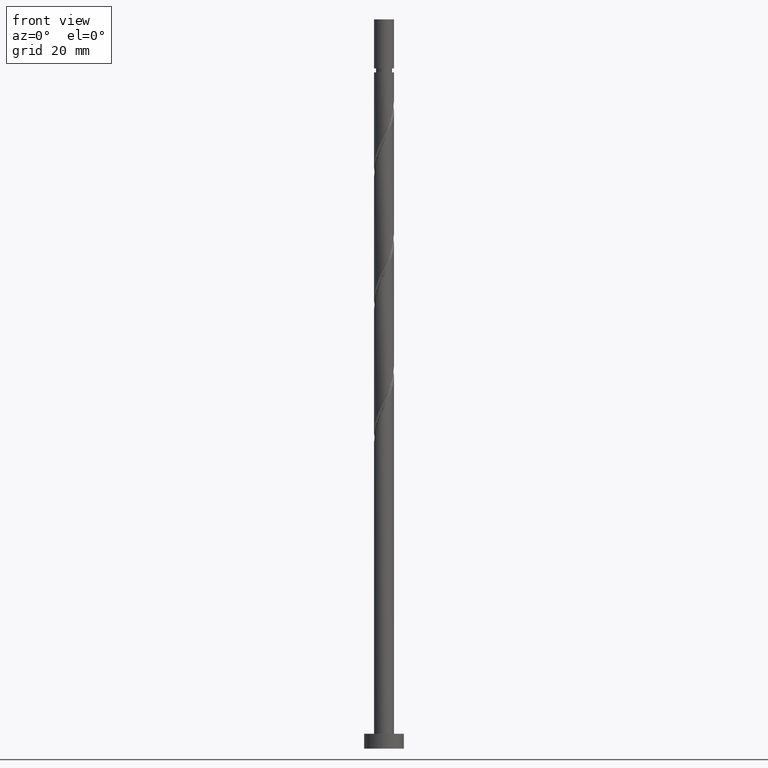
[diagram: clean part render]
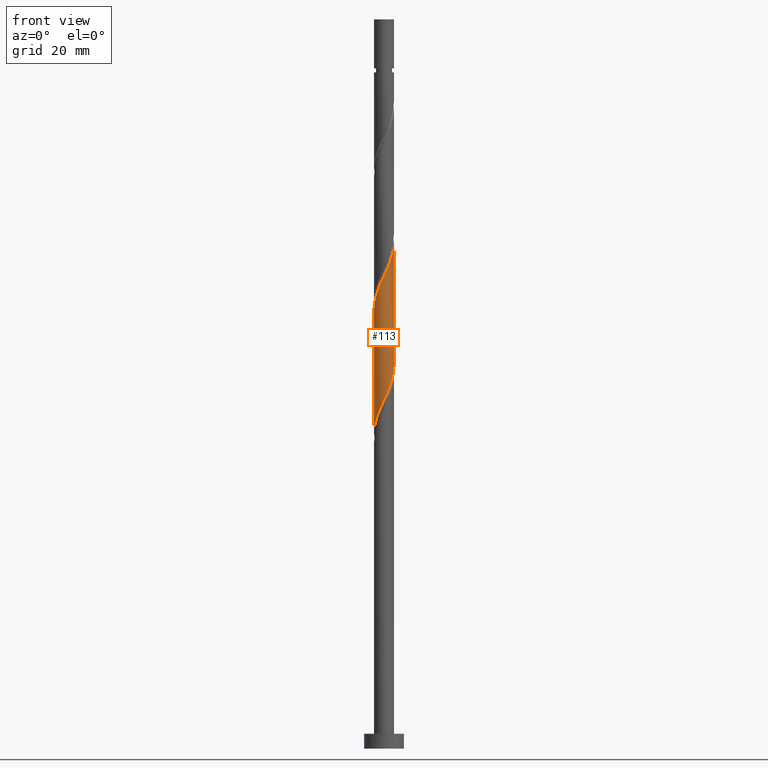
[diagram: same view with one face highlighted and labeled with its STEP entity id]
A machine part, front view. The second image highlights one B-rep face of the part: STEP entity #113.
In plain terms, the highlighted cylindrical surface (edge-blend (fillet) strip) has radius 2 mm, axis along (-0, -0, -1).
Its self-contained STEP definition (entity closure, byte-faithful):
#17 = DIRECTION ( 'NONE',  ( -1.000000000000000000, 0.000000000000000000, 0.000000000000000000 ) ) ;
#25 = CARTESIAN_POINT ( 'NONE',  ( 0.9340691933046018081, -1.768478086411958028, 97.05590359365933750 ) ) ;
#70 =( BOUNDED_CURVE ( )  B_SPLINE_CURVE ( 2, ( #1201, #809, #145, #1176, #156, #1563, #1323, #654, #179, #1419, #938, #1438, #1073, #394, #414, #665, #25, #906, #289, #797, #645, #1188, #1312, #269, #1166 ),
 .UNSPECIFIED., .F., .F. ) 
 B_SPLINE_CURVE_WITH_KNOTS ( ( 3, 2, 2, 2, 2, 2, 2, 2, 2, 2, 2, 2, 3 ),
 ( 0.3045252162417513286, 0.3068181818181817677, 0.3181818181818182323, 0.3295454545454545858, 0.3409090909090909394, 0.3522727272727272929, 0.3636363636363636465, 0.3750000000000000000, 0.3863636363636363535, 0.3977272727272727071, 0.4090909090909090606, 0.4204545454545454142, 0.4295252162417511066 ),
 .UNSPECIFIED. ) 
 CURVE ( )  GEOMETRIC_REPRESENTATION_ITEM ( )  RATIONAL_B_SPLINE_CURVE ( ( 0.9061101570135646766, 0.9072237824201467848, 0.9090909090909243817, 0.8998376744372265090, 0.9090909090909243817, 0.8998376744372265090, 0.9090909090909243817, 0.8998376744372265090, 0.9090909090909243817, 0.8998376744372265090, 0.9090909090909243817, 0.8998376744372265090, 0.9090909090909243817, 0.8998376744372265090, 0.9090909090909243817, 0.8998376744372265090, 0.9090909090909243817, 0.8998376744372265090, 0.9090909090909243817, 0.8998376744372265090, 0.9090909090909243817, 0.8998376744372265090, 0.9090909090909243817, 0.9017048011080042169, 0.9061101570135644545 ) ) 
 REPRESENTATION_ITEM ( '' )  );
#107 = LINE ( 'NONE', #480, #342 ) ;
#113 = ADVANCED_FACE ( 'NONE', ( #1546 ), #147, .T. ) ;
#142 = CARTESIAN_POINT ( 'NONE',  ( -1.883197487972271711, -0.7322950311120145495, 64.93469147244726969 ) ) ;
#145 = CARTESIAN_POINT ( 'NONE',  ( -1.996690616564942955, -0.1150068768444763440, 88.57105510881086730 ) ) ;
#147 = CYLINDRICAL_SURFACE ( 'NONE', #740, 2.000000000000000000 ) ;
#150 = CARTESIAN_POINT ( 'NONE',  ( 0.4568343776401062040, -1.968245701812301407, 70.99529753305333202 ) ) ;
#156 = CARTESIAN_POINT ( 'NONE',  ( -1.883409435608319304, -0.6728810428757545647, 89.78317632093209966 ) ) ;
#179 = CARTESIAN_POINT ( 'NONE',  ( -1.220637884402356432, -1.584311571365225602, 92.20741874517452175 ) ) ;
#214 = CARTESIAN_POINT ( 'NONE',  ( 2.000000000000003109, 8.899308318580325832E-16, 101.6609945689039449 ) ) ;
#216 = EDGE_LOOP ( 'NONE', ( #1642, #574, #482, #1129 ) ) ;
#269 = CARTESIAN_POINT ( 'NONE',  ( 2.000000000000001776, -0.2290578547702513124, 101.1750346159326170 ) ) ;
#273 = CARTESIAN_POINT ( 'NONE',  ( 1.448427499289742348, -1.408810338760219771, 73.41953995729573990 ) ) ;
#282 = EDGE_CURVE ( 'NONE', #1252, #1439, #107, .T. ) ;
#289 = CARTESIAN_POINT ( 'NONE',  ( 1.394470680848407529, -1.433684595806968387, 98.26802480578056986 ) ) ;
#324 = CARTESIAN_POINT ( 'NONE',  ( -2.000000000000003109, -9.647149353755143079E-16, 88.32766123557061633 ) ) ;
#342 = VECTOR ( 'NONE', #1135, 1000.000000000000000 ) ;
#363 =( BOUNDED_CURVE ( )  B_SPLINE_CURVE ( 2, ( #512, #1034, #1537, #528, #385, #392, #1276, #273, #896, #910, #649, #150, #1423, #1155, #790, #1549, #1410, #398, #1557, #780, #407, #142, #1431, #930, #903 ),
 .UNSPECIFIED., .F., .T. ) 
 B_SPLINE_CURVE_WITH_KNOTS ( ( 3, 2, 2, 2, 2, 2, 2, 2, 2, 2, 2, 2, 3 ),
 ( 0.8045252162417513286, 0.8068181818181817677, 0.8181818181818182323, 0.8295454545454545858, 0.8409090909090909394, 0.8522727272727272929, 0.8636363636363636465, 0.8750000000000000000, 0.8863636363636363535, 0.8977272727272727071, 0.9090909090909090606, 0.9204545454545454142, 0.9295252162417513286 ),
 .UNSPECIFIED. ) 
 CURVE ( )  GEOMETRIC_REPRESENTATION_ITEM ( )  RATIONAL_B_SPLINE_CURVE ( ( 0.9061101570135584593, 0.9072237824201405676, 0.9090909090909180534, 0.8998376744372204028, 0.9090909090909180534, 0.8998376744372204028, 0.9090909090909180534, 0.8998376744372204028, 0.9090909090909180534, 0.8998376744372204028, 0.9090909090909180534, 0.8998376744372204028, 0.9090909090909180534, 0.8998376744372204028, 0.9090909090909180534, 0.8998376744372204028, 0.9090909090909180534, 0.8998376744372204028, 0.9090909090909180534, 0.8998376744372204028, 0.9090909090909180534, 0.8998376744372204028, 0.9090909090909180534, 0.9017048011079978886, 0.9061101570135584593 ) ) 
 REPRESENTATION_ITEM ( '' )  );
#385 = CARTESIAN_POINT ( 'NONE',  ( 1.883409435608316862, -0.6728810428757546758, 75.23772177547759554 ) ) ;
#392 = CARTESIAN_POINT ( 'NONE',  ( 1.786663747202082320, -0.9436744384215535186, 74.63166116941695805 ) ) ;
#394 = CARTESIAN_POINT ( 'NONE',  ( 0.1161895186125000562, -2.017223038501451349, 95.23772177547755291 ) ) ;
#398 = CARTESIAN_POINT ( 'NONE',  ( -1.188337955536407309, -1.634179211325359038, 67.35893389668970599 ) ) ;
#407 = CARTESIAN_POINT ( 'NONE',  ( -1.741900447066338398, -0.9827425057002938669, 65.54075207850789297 ) ) ;
#414 = CARTESIAN_POINT ( 'NONE',  ( 0.3979949748426480083, -1.960000000000003073, 95.84378238153813356 ) ) ;
#415 = CARTESIAN_POINT ( 'NONE',  ( 0.000000000000000000, 0.000000000000000000, 146.5000000000000000 ) ) ;
#480 = CARTESIAN_POINT ( 'NONE',  ( -2.000000000000000000, 0.000000000000000000, 146.5000000000000000 ) ) ;
#482 = ORIENTED_EDGE ( 'NONE', *, *, #282, .T. ) ;
#512 = CARTESIAN_POINT ( 'NONE',  ( 2.000000000000000000, -1.974300332861531101E-15, 76.69323686083907887 ) ) ;
#528 = CARTESIAN_POINT ( 'NONE',  ( 1.980155124014550738, -0.4020876473299552223, 75.84378238153819041 ) ) ;
#534 = DIRECTION ( 'NONE',  ( -0.000000000000000000, -0.000000000000000000, -1.000000000000000000 ) ) ;
#544 = LINE ( 'NONE', #1461, #1198 ) ;
#556 = DIRECTION ( 'NONE',  ( -0.000000000000000000, -0.000000000000000000, -1.000000000000000000 ) ) ;
#574 = ORIENTED_EDGE ( 'NONE', *, *, #1152, .F. ) ;
#645 = CARTESIAN_POINT ( 'NONE',  ( 1.741900447066339952, -0.9827425057002958653, 99.48014601790183065 ) ) ;
#649 = CARTESIAN_POINT ( 'NONE',  ( 0.7248413235775366115, -1.864029252891264754, 71.60135813911395530 ) ) ;
#654 = CARTESIAN_POINT ( 'NONE',  ( -1.448427499289744569, -1.408810338760221326, 91.60135813911392688 ) ) ;
#665 = CARTESIAN_POINT ( 'NONE',  ( 0.6798004310727959743, -1.902776961498555020, 96.44984298759878527 ) ) ;
#740 = AXIS2_PLACEMENT_3D ( 'NONE', #415, #534, #17 ) ;
#780 = CARTESIAN_POINT ( 'NONE',  ( -1.600603406160404640, -1.233189980288572851, 66.14681268456848784 ) ) ;
#790 = CARTESIAN_POINT ( 'NONE',  ( -0.3979949748426482303, -1.959999999999999964, 69.17711571487151900 ) ) ;
#797 = CARTESIAN_POINT ( 'NONE',  ( 1.600603406160406861, -1.233189980288575516, 98.87408541184120736 ) ) ;
#809 = CARTESIAN_POINT ( 'NONE',  ( -2.000000000000003553, -0.05755105304764517038, 88.44975924028882730 ) ) ;
#846 = VERTEX_POINT ( 'NONE', #214 ) ;
#896 = CARTESIAN_POINT ( 'NONE',  ( 1.220637884402354656, -1.584311571365223825, 72.81347935123517345 ) ) ;
#903 = CARTESIAN_POINT ( 'NONE',  ( -2.000000000000000000, 1.533074122108385710E-15, 63.35990352750574317 ) ) ;
#906 = CARTESIAN_POINT ( 'NONE',  ( 1.188337955536409085, -1.634179211325361258, 97.66196419971998921 ) ) ;
#910 = CARTESIAN_POINT ( 'NONE',  ( 0.9928482695149669635, -1.759812803970227879, 72.20741874517455017 ) ) ;
#930 = CARTESIAN_POINT ( 'NONE',  ( -2.000000000000000444, -0.2290578547702450396, 63.84586348047704263 ) ) ;
#938 = CARTESIAN_POINT ( 'NONE',  ( -0.7248413235775382768, -1.864029252891266086, 93.41953995729575411 ) ) ;
#1034 = CARTESIAN_POINT ( 'NONE',  ( 2.000000000000000000, -0.05755105304764605162, 76.57113885612088211 ) ) ;
#1073 = CARTESIAN_POINT ( 'NONE',  ( -0.1703224295138033029, -1.992734370156876489, 94.63166116941695805 ) ) ;
#1129 = ORIENTED_EDGE ( 'NONE', *, *, #1580, .F. ) ;
#1135 = DIRECTION ( 'NONE',  ( -0.000000000000000000, -0.000000000000000000, -1.000000000000000000 ) ) ;
#1152 = EDGE_CURVE ( 'NONE', #1252, #846, #70, .T. ) ;
#1155 = CARTESIAN_POINT ( 'NONE',  ( -0.1161895186125007778, -2.017223038501448240, 69.78317632093212808 ) ) ;
#1166 = CARTESIAN_POINT ( 'NONE',  ( 2.000000000000003109, 8.899308318580325832E-16, 101.6609945689039449 ) ) ;
#1173 = EDGE_CURVE ( 'NONE', #846, #1321, #544, .T. ) ;
#1176 = CARTESIAN_POINT ( 'NONE',  ( -1.980155124014554291, -0.4020876473299551113, 89.17711571487150479 ) ) ;
#1188 = CARTESIAN_POINT ( 'NONE',  ( 1.883197487972274597, -0.7322950311120155487, 100.0862066239624113 ) ) ;
#1198 = VECTOR ( 'NONE', #556, 1000.000000000000000 ) ;
#1201 = CARTESIAN_POINT ( 'NONE',  ( -2.000000000000003109, -9.647149353755143079E-16, 88.32766123557061633 ) ) ;
#1229 = CARTESIAN_POINT ( 'NONE',  ( 2.000000000000000000, -1.974300332861531101E-15, 76.69323686083907887 ) ) ;
#1251 = CARTESIAN_POINT ( 'NONE',  ( -2.000000000000000000, 1.533074122108385710E-15, 63.35990352750574317 ) ) ;
#1252 = VERTEX_POINT ( 'NONE', #324 ) ;
#1276 = CARTESIAN_POINT ( 'NONE',  ( 1.617545623245912667, -1.176242388590886589, 74.02560056335633476 ) ) ;
#1312 = CARTESIAN_POINT ( 'NONE',  ( 1.948211798543802775, -0.4521844623765088889, 100.6922672300229920 ) ) ;
#1321 = VERTEX_POINT ( 'NONE', #1229 ) ;
#1323 = CARTESIAN_POINT ( 'NONE',  ( -1.617545623245914665, -1.176242388590887700, 90.99529753305330360 ) ) ;
#1410 = CARTESIAN_POINT ( 'NONE',  ( -0.9340691933046014750, -1.768478086411955585, 67.96499450275032927 ) ) ;
#1419 = CARTESIAN_POINT ( 'NONE',  ( -0.9928482695149695170, -1.759812803970229877, 92.81347935123513082 ) ) ;
#1423 = CARTESIAN_POINT ( 'NONE',  ( 0.1703224295138022759, -1.992734370156874713, 70.38923692699273715 ) ) ;
#1431 = CARTESIAN_POINT ( 'NONE',  ( -1.948211798543800555, -0.4521844623765079452, 64.32863086638667482 ) ) ;
#1438 = CARTESIAN_POINT ( 'NONE',  ( -0.4568343776401067591, -1.968245701812304516, 94.02560056335637739 ) ) ;
#1439 = VERTEX_POINT ( 'NONE', #1251 ) ;
#1461 = CARTESIAN_POINT ( 'NONE',  ( 2.000000000000000000, 2.449293598294706414E-16, 146.5000000000000000 ) ) ;
#1537 = CARTESIAN_POINT ( 'NONE',  ( 1.996690616564939402, -0.1150068768444770795, 76.44984298759881369 ) ) ;
#1546 = FACE_OUTER_BOUND ( 'NONE', #216, .T. ) ;
#1549 = CARTESIAN_POINT ( 'NONE',  ( -0.6798004310727957522, -1.902776961498551689, 68.57105510881092414 ) ) ;
#1557 = CARTESIAN_POINT ( 'NONE',  ( -1.394470680848406197, -1.433684595806965723, 66.75287329062909691 ) ) ;
#1563 = CARTESIAN_POINT ( 'NONE',  ( -1.786663747202085206, -0.9436744384215547399, 90.38923692699270873 ) ) ;
#1580 = EDGE_CURVE ( 'NONE', #1321, #1439, #363, .T. ) ;
#1642 = ORIENTED_EDGE ( 'NONE', *, *, #1173, .F. ) ;